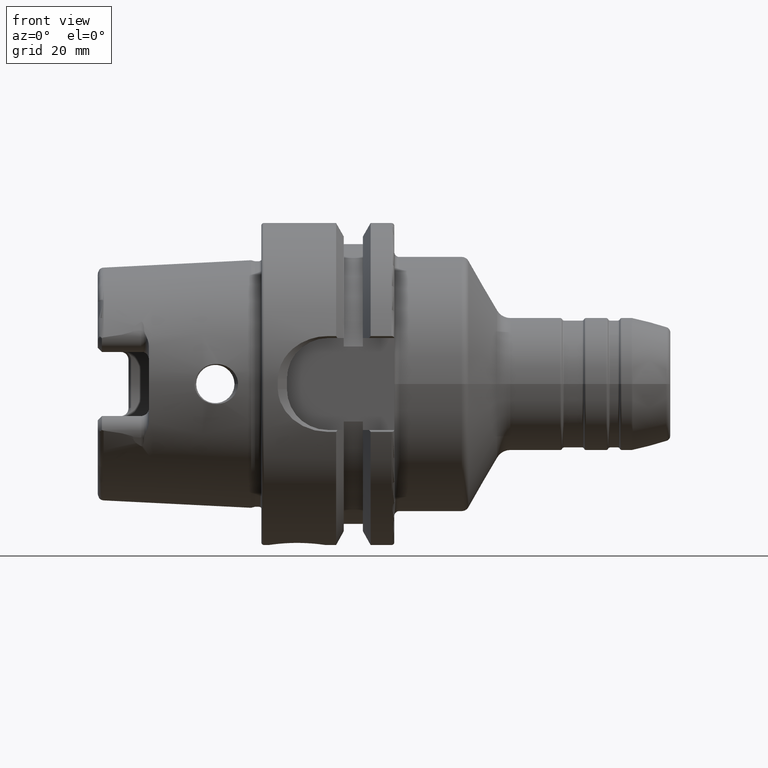
[diagram: clean part render]
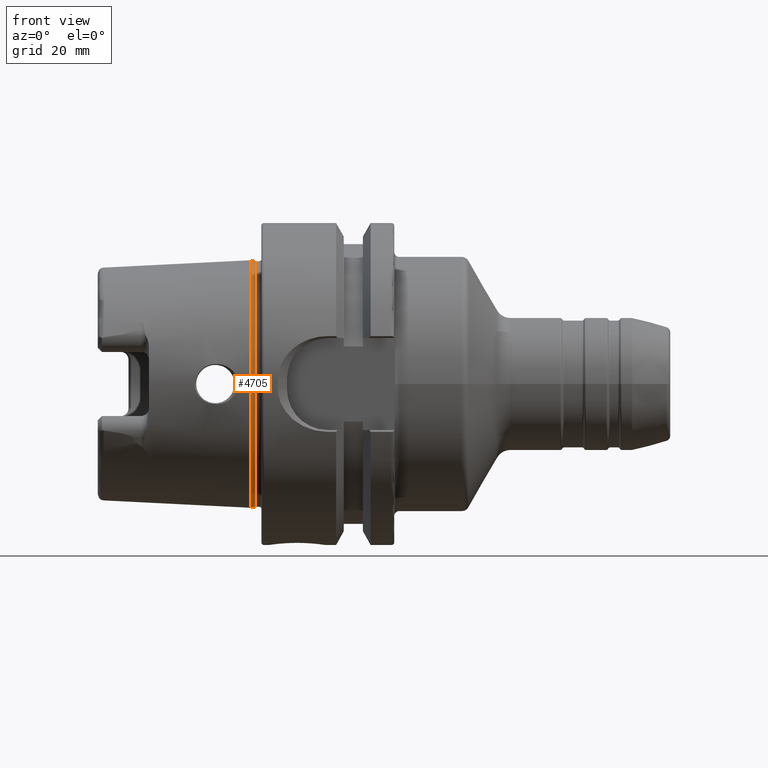
[diagram: same view with one face highlighted and labeled with its STEP entity id]
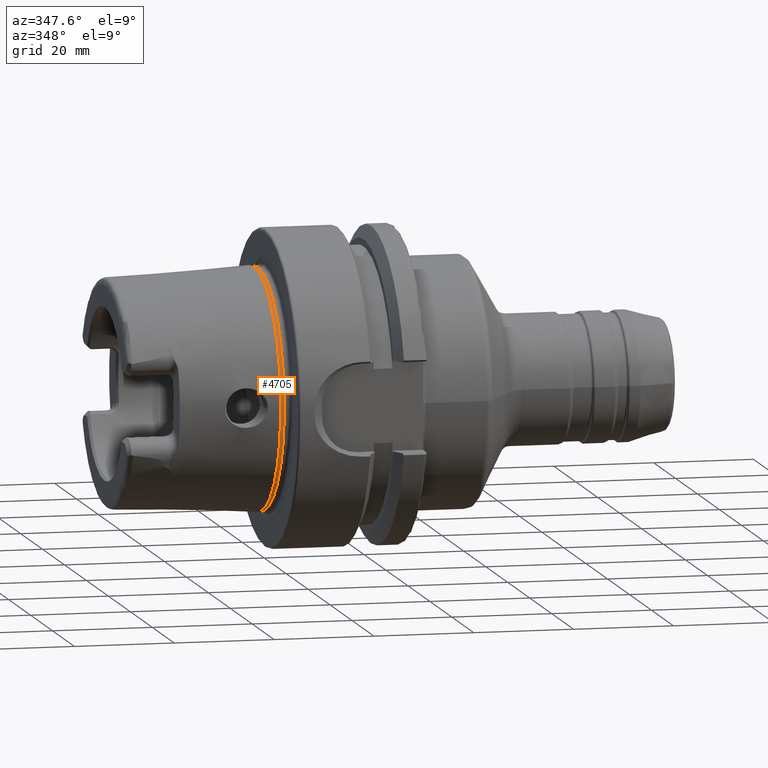
[diagram: same view with one face highlighted and labeled with its STEP entity id]
A machine part, front view. The second image highlights one B-rep face of the part: STEP entity #4705.
A second angle (auxiliary view) of the same face is appended — the face is thin or edge-on in the first view.
In plain terms, the highlighted conical surface has half-angle 15 deg.
Its self-contained STEP definition (entity closure, byte-faithful):
#1103=CARTESIAN_POINT('',(-1.253589838486E0,0.E0,0.E0));
#1104=DIRECTION('',(-1.E0,0.E0,0.E0));
#1105=DIRECTION('',(0.E0,0.E0,-1.E0));
#1106=AXIS2_PLACEMENT_3D('',#1103,#1104,#1105);
#1122=DIRECTION('',(-9.659218281104E-1,3.219855482307E-11,2.588339660473E-1));
#1123=VECTOR('',#1122,7.727445092679E-1);
#1124=CARTESIAN_POINT('',(-1.253589838297E0,2.988288661939E-9,
2.402039999995E1));
#1125=LINE('',#1124,#1123);
#1126=DIRECTION('',(-9.659218281104E-1,-3.219731053601E-11,-2.588339660473E-1));
#1127=VECTOR('',#1126,7.727445092679E-1);
#1128=CARTESIAN_POINT('',(-1.253589838297E0,-2.988291567115E-9,
-2.402039999995E1));
#1129=LINE('',#1128,#1127);
#1216=CARTESIAN_POINT('',(-2.000078966146E0,0.E0,0.E0));
#1217=DIRECTION('',(-1.E0,0.E0,0.E0));
#1218=DIRECTION('',(0.E0,0.E0,-1.E0));
#1219=AXIS2_PLACEMENT_3D('',#1216,#1217,#1218);
#2902=CARTESIAN_POINT('',(-1.253589838486E0,0.E0,-2.40204E1));
#2903=CARTESIAN_POINT('',(-1.253589838486E0,0.E0,2.40204E1));
#2904=VERTEX_POINT('',#2902);
#2905=VERTEX_POINT('',#2903);
#2906=CARTESIAN_POINT('',(-2.000078966146E0,0.E0,-2.422042115892E1));
#2907=CARTESIAN_POINT('',(-2.000078966146E0,0.E0,2.422042115892E1));
#2908=VERTEX_POINT('',#2906);
#2909=VERTEX_POINT('',#2907);
#4693=CARTESIAN_POINT('',(-1.626838204206E0,0.E0,0.E0));
#4694=DIRECTION('',(-1.E0,0.E0,0.E0));
#4695=DIRECTION('',(0.E0,0.E0,-1.E0));
#4696=AXIS2_PLACEMENT_3D('',#4693,#4694,#4695);
#4697=CONICAL_SURFACE('',#4696,2.412041159817E1,1.5E1);
#4698=ORIENTED_EDGE('',*,*,#4659,.F.);
#4699=ORIENTED_EDGE('',*,*,#4688,.T.);
#4701=ORIENTED_EDGE('',*,*,#4700,.T.);
#4702=ORIENTED_EDGE('',*,*,#4685,.F.);
#4703=EDGE_LOOP('',(#4698,#4699,#4701,#4702));
#4704=FACE_OUTER_BOUND('',#4703,.F.);
#4705=ADVANCED_FACE('',(#4704),#4697,.T.);
#1107=CIRCLE('',#1106,2.40204E1);
#1220=CIRCLE('',#1219,2.422042115892E1);
#4659=EDGE_CURVE('',#2904,#2905,#1107,.T.);
#4685=EDGE_CURVE('',#2905,#2909,#1125,.T.);
#4688=EDGE_CURVE('',#2904,#2908,#1129,.T.);
#4700=EDGE_CURVE('',#2908,#2909,#1220,.T.);